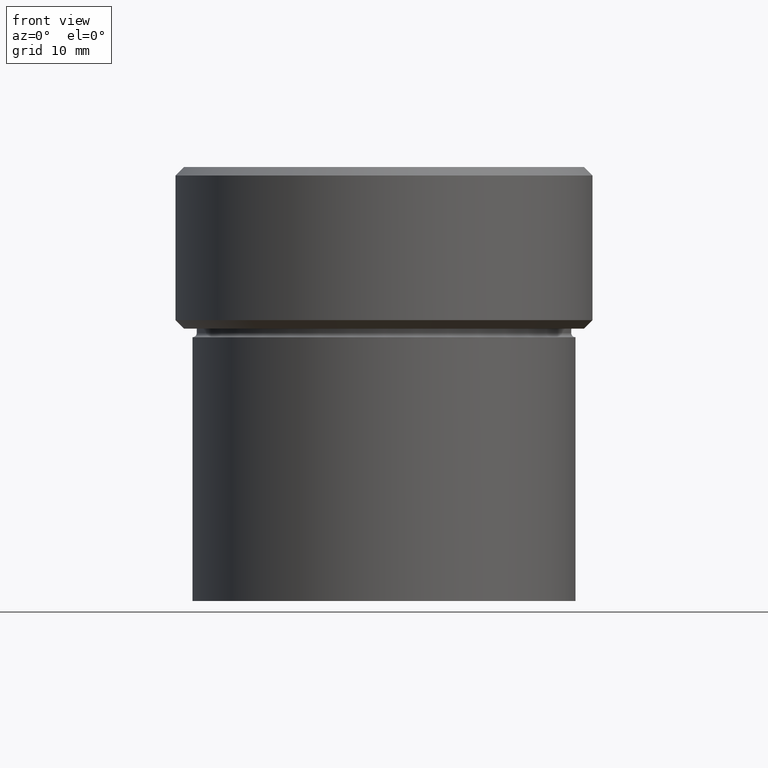
[diagram: clean part render]
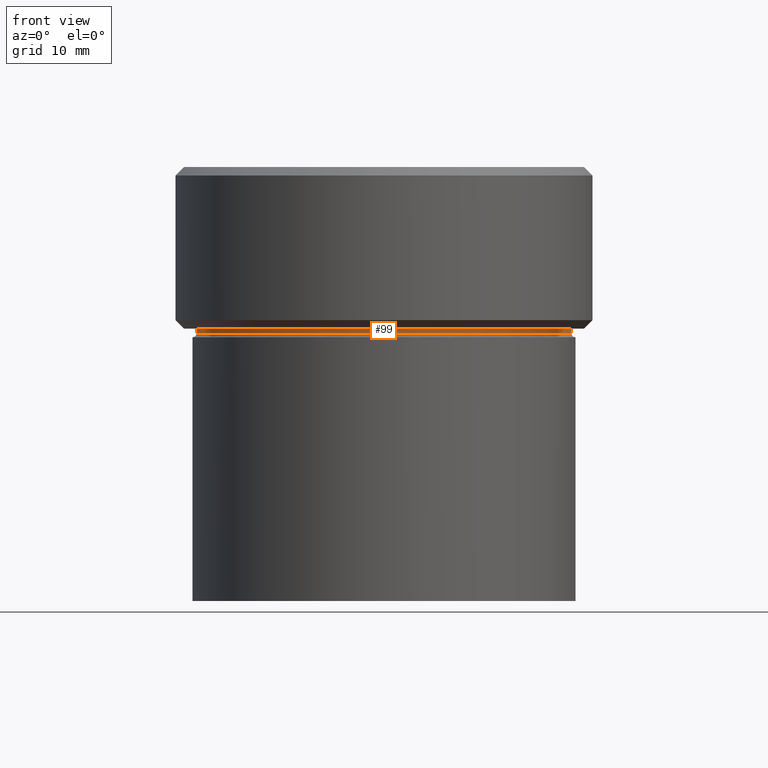
[diagram: same view with one face highlighted and labeled with its STEP entity id]
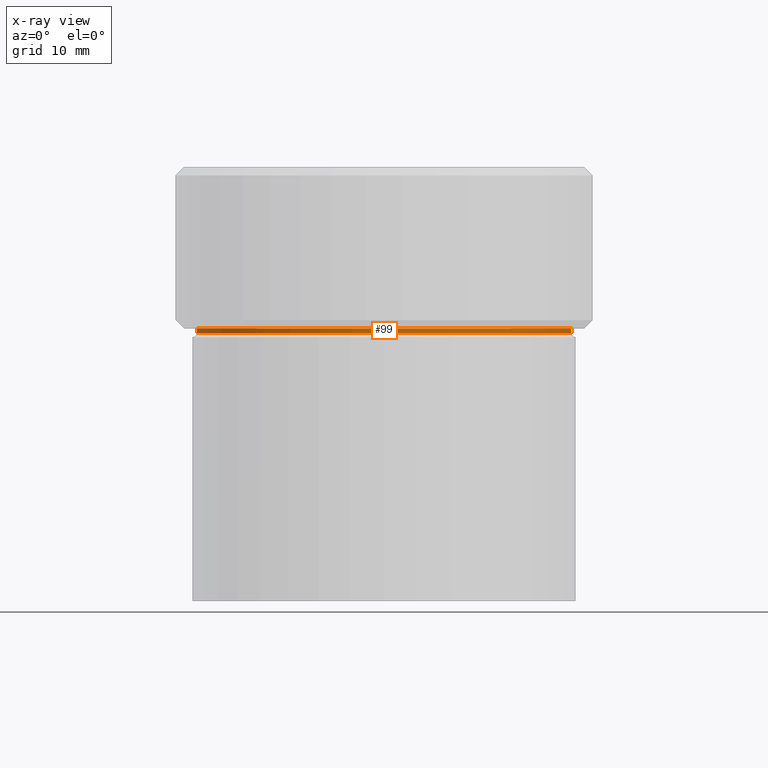
[diagram: x-ray of the same camera — body ghosted, the highlighted face saturated]
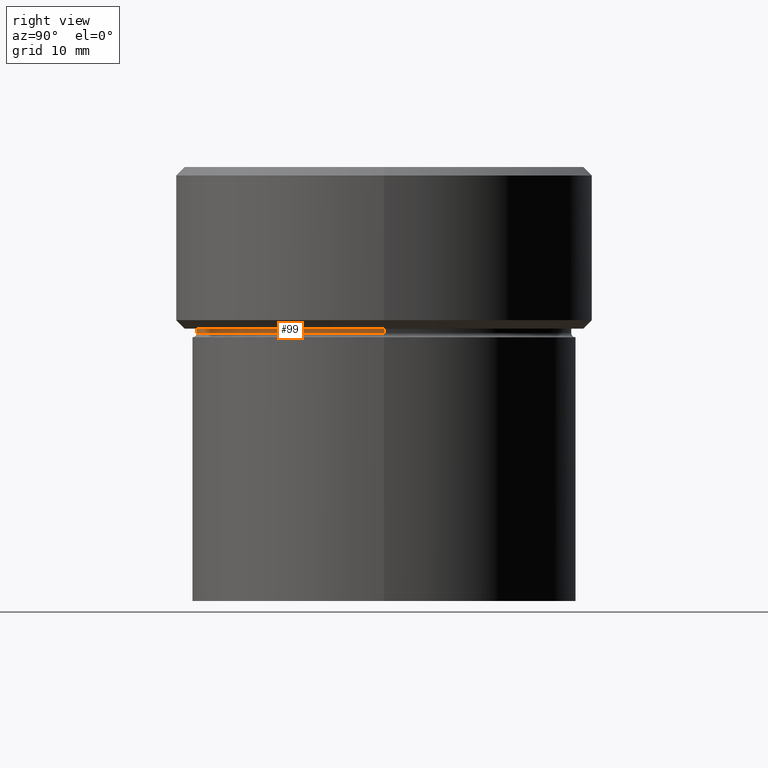
[diagram: same view with one face highlighted and labeled with its STEP entity id]
A machine part, front view. The second image highlights one B-rep face of the part: STEP entity #99.
The next image is the same camera in x-ray: the body ghosted, the highlighted face saturated — about 0% of this face is hidden behind the body in this view.
A second angle (right view) of the same face is appended — the face is thin or edge-on in the first view.
In plain terms, the highlighted cylindrical surface (partial cylindrical patch) has radius 22 mm, axis along (-0, -0, 1).
Its self-contained STEP definition (entity closure, byte-faithful):
#6 = DIRECTION ( 'NONE',  ( -0.000000000000000000, -0.000000000000000000, 1.000000000000000000 ) ) ;
#12 = CIRCLE ( 'NONE', #86, 22.00000000000000000 ) ;
#56 = CARTESIAN_POINT ( 'NONE',  ( 22.00000000000000000, 0.000000000000000000, -19.49999999999999645 ) ) ;
#60 = CARTESIAN_POINT ( 'NONE',  ( -22.00000000000000000, 2.694222958124176809E-15, -18.99999999999999645 ) ) ;
#68 = VERTEX_POINT ( 'NONE', #56 ) ;
#72 = EDGE_CURVE ( 'NONE', #273, #68, #466, .T. ) ;
#81 = ORIENTED_EDGE ( 'NONE', *, *, #414, .F. ) ;
#86 = AXIS2_PLACEMENT_3D ( 'NONE', #517, #149, #465 ) ;
#89 = LINE ( 'NONE', #492, #124 ) ;
#99 = ADVANCED_FACE ( 'NONE', ( #237 ), #119, .T. ) ;
#119 = CYLINDRICAL_SURFACE ( 'NONE', #516, 22.00000000000000000 ) ;
#121 = DIRECTION ( 'NONE',  ( -0.000000000000000000, -0.000000000000000000, 1.000000000000000000 ) ) ;
#124 = VECTOR ( 'NONE', #6, 1000.000000000000000 ) ;
#140 = EDGE_CURVE ( 'NONE', #273, #443, #397, .T. ) ;
#143 = CARTESIAN_POINT ( 'NONE',  ( 22.00000000000000000, 0.000000000000000000, -18.99999999999999645 ) ) ;
#149 = DIRECTION ( 'NONE',  ( -0.000000000000000000, -0.000000000000000000, 1.000000000000000000 ) ) ;
#171 = CARTESIAN_POINT ( 'NONE',  ( -22.00000000000000000, 2.694222958124176809E-15, -19.49999999999999645 ) ) ;
#181 = ORIENTED_EDGE ( 'NONE', *, *, #140, .F. ) ;
#188 = ORIENTED_EDGE ( 'NONE', *, *, #72, .T. ) ;
#199 = CARTESIAN_POINT ( 'NONE',  ( -22.00000000000000000, 2.694222958124176809E-15, 0.000000000000000000 ) ) ;
#205 = VECTOR ( 'NONE', #121, 1000.000000000000000 ) ;
#217 = DIRECTION ( 'NONE',  ( -0.000000000000000000, -0.000000000000000000, 1.000000000000000000 ) ) ;
#237 = FACE_OUTER_BOUND ( 'NONE', #515, .T. ) ;
#259 = DIRECTION ( 'NONE',  ( 1.000000000000000000, 0.000000000000000000, 0.000000000000000000 ) ) ;
#271 = EDGE_CURVE ( 'NONE', #68, #507, #89, .T. ) ;
#273 = VERTEX_POINT ( 'NONE', #171 ) ;
#289 = CARTESIAN_POINT ( 'NONE',  ( 0.000000000000000000, 0.000000000000000000, 0.000000000000000000 ) ) ;
#324 = DIRECTION ( 'NONE',  ( 1.000000000000000000, 0.000000000000000000, 0.000000000000000000 ) ) ;
#347 = ORIENTED_EDGE ( 'NONE', *, *, #271, .T. ) ;
#351 = AXIS2_PLACEMENT_3D ( 'NONE', #477, #217, #259 ) ;
#397 = LINE ( 'NONE', #199, #205 ) ;
#414 = EDGE_CURVE ( 'NONE', #443, #507, #12, .T. ) ;
#443 = VERTEX_POINT ( 'NONE', #60 ) ;
#449 = DIRECTION ( 'NONE',  ( -0.000000000000000000, -0.000000000000000000, 1.000000000000000000 ) ) ;
#465 = DIRECTION ( 'NONE',  ( 1.000000000000000000, 0.000000000000000000, 0.000000000000000000 ) ) ;
#466 = CIRCLE ( 'NONE', #351, 22.00000000000000000 ) ;
#477 = CARTESIAN_POINT ( 'NONE',  ( 0.000000000000000000, 0.000000000000000000, -19.49999999999999645 ) ) ;
#492 = CARTESIAN_POINT ( 'NONE',  ( 22.00000000000000000, 0.000000000000000000, 0.000000000000000000 ) ) ;
#507 = VERTEX_POINT ( 'NONE', #143 ) ;
#515 = EDGE_LOOP ( 'NONE', ( #181, #188, #347, #81 ) ) ;
#516 = AXIS2_PLACEMENT_3D ( 'NONE', #289, #449, #324 ) ;
#517 = CARTESIAN_POINT ( 'NONE',  ( 0.000000000000000000, 0.000000000000000000, -18.99999999999999645 ) ) ;